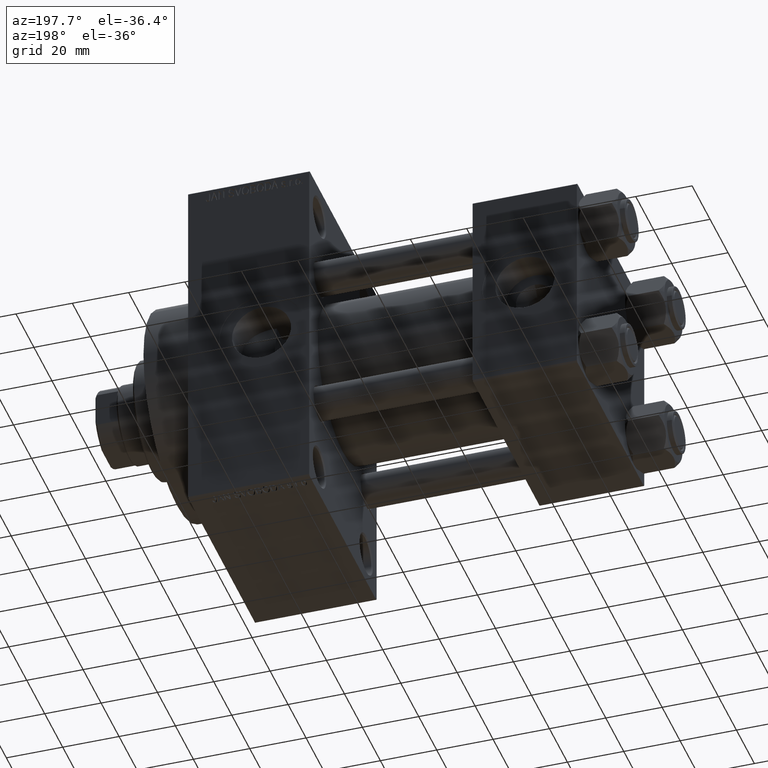
[diagram: clean part render]
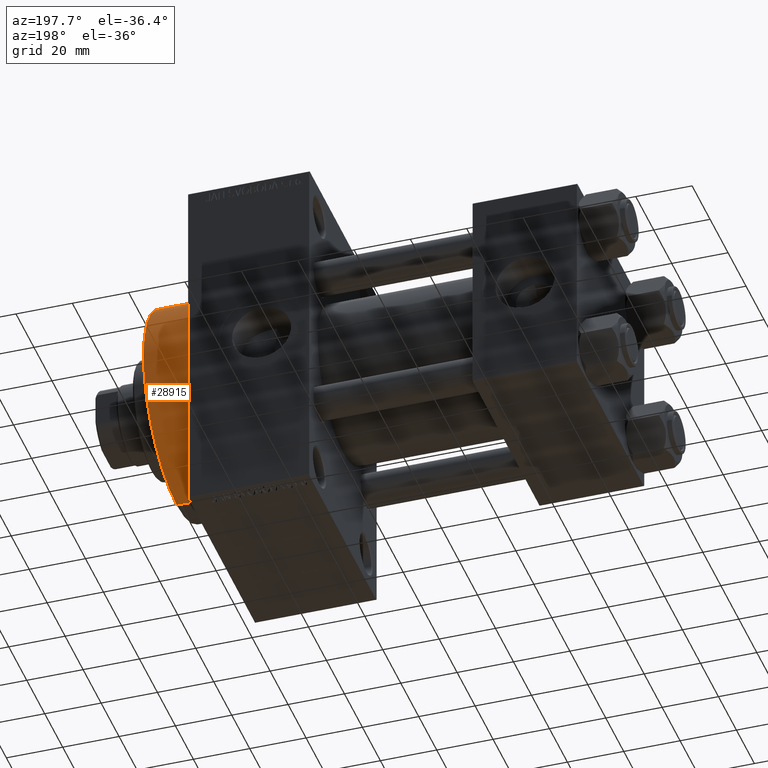
[diagram: same view with one face highlighted and labeled with its STEP entity id]
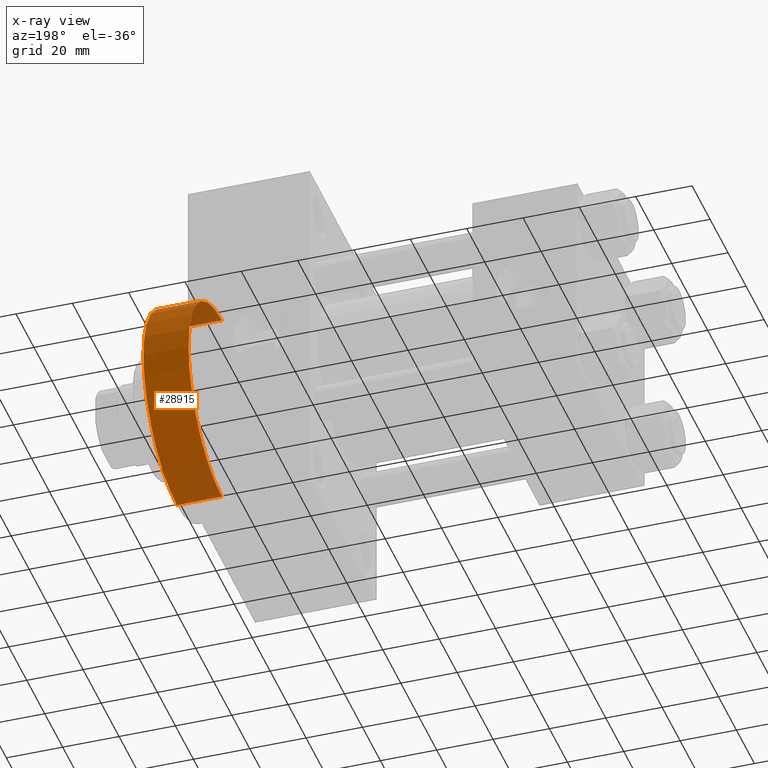
[diagram: x-ray of the same camera — body ghosted, the highlighted face saturated]
A machine part, auxiliary view. The second image highlights one B-rep face of the part: STEP entity #28915.
The next image is the same camera in x-ray: the body ghosted, the highlighted face saturated — about 16% of this face is hidden behind the body in this view.
In plain terms, the highlighted cylindrical surface (partial cylindrical patch) has radius 37 mm, axis along (-1, -0, -0).
Its self-contained STEP definition (entity closure, byte-faithful):
#1765 = CARTESIAN_POINT ( 'NONE',  ( 138.0000000000000000, 4.531193156845206793E-15, -37.00000000000000000 ) ) ;
#3172 = ORIENTED_EDGE ( 'NONE', *, *, #10743, .T. ) ;
#4338 = EDGE_LOOP ( 'NONE', ( #37027, #3172, #22402, #43935 ) ) ;
#4672 = CARTESIAN_POINT ( 'NONE',  ( 138.0000000000000000, 0.000000000000000000, 0.000000000000000000 ) ) ;
#5415 = DIRECTION ( 'NONE',  ( 0.000000000000000000, 0.000000000000000000, -1.000000000000000000 ) ) ;
#5635 = FACE_OUTER_BOUND ( 'NONE', #4338, .T. ) ;
#6168 = CIRCLE ( 'NONE', #42539, 37.00000000000000000 ) ;
#6369 = VECTOR ( 'NONE', #33379, 1000.000000000000000 ) ;
#9091 = CARTESIAN_POINT ( 'NONE',  ( 154.0000000000000284, 0.000000000000000000, 0.000000000000000000 ) ) ;
#10743 = EDGE_CURVE ( 'NONE', #14497, #20943, #28679, .T. ) ;
#14497 = VERTEX_POINT ( 'NONE', #34269 ) ;
#15607 = VERTEX_POINT ( 'NONE', #16382 ) ;
#16382 = CARTESIAN_POINT ( 'NONE',  ( 154.0000000000000284, 0.000000000000000000, 37.00000000000000000 ) ) ;
#16531 = DIRECTION ( 'NONE',  ( 0.000000000000000000, 0.000000000000000000, 1.000000000000000000 ) ) ;
#19413 = DIRECTION ( 'NONE',  ( -1.000000000000000000, -0.000000000000000000, -0.000000000000000000 ) ) ;
#20943 = VERTEX_POINT ( 'NONE', #1765 ) ;
#22402 = ORIENTED_EDGE ( 'NONE', *, *, #29980, .T. ) ;
#24680 = DIRECTION ( 'NONE',  ( -1.000000000000000000, -0.000000000000000000, -0.000000000000000000 ) ) ;
#25920 = AXIS2_PLACEMENT_3D ( 'NONE', #9091, #24680, #16531 ) ;
#27819 = CARTESIAN_POINT ( 'NONE',  ( 154.0000000000000284, 0.000000000000000000, 37.00000000000000000 ) ) ;
#28679 = LINE ( 'NONE', #44036, #6369 ) ;
#28915 = ADVANCED_FACE ( 'NONE', ( #5635 ), #42780, .T. ) ;
#29980 = EDGE_CURVE ( 'NONE', #20943, #33566, #6168, .T. ) ;
#30116 = AXIS2_PLACEMENT_3D ( 'NONE', #46777, #47002, #5415 ) ;
#30561 = CARTESIAN_POINT ( 'NONE',  ( 138.0000000000000000, 0.000000000000000000, 37.00000000000000000 ) ) ;
#33379 = DIRECTION ( 'NONE',  ( -1.000000000000000000, -0.000000000000000000, -0.000000000000000000 ) ) ;
#33566 = VERTEX_POINT ( 'NONE', #30561 ) ;
#34269 = CARTESIAN_POINT ( 'NONE',  ( 154.0000000000000284, 4.531193156845206793E-15, -37.00000000000000000 ) ) ;
#35611 = DIRECTION ( 'NONE',  ( 1.000000000000000000, 0.000000000000000000, 0.000000000000000000 ) ) ;
#36518 = EDGE_CURVE ( 'NONE', #14497, #15607, #43562, .T. ) ;
#37027 = ORIENTED_EDGE ( 'NONE', *, *, #36518, .F. ) ;
#42539 = AXIS2_PLACEMENT_3D ( 'NONE', #4672, #35611, #43032 ) ;
#42780 = CYLINDRICAL_SURFACE ( 'NONE', #25920, 37.00000000000000000 ) ;
#43032 = DIRECTION ( 'NONE',  ( 0.000000000000000000, 0.000000000000000000, -1.000000000000000000 ) ) ;
#43562 = CIRCLE ( 'NONE', #30116, 37.00000000000000000 ) ;
#43935 = ORIENTED_EDGE ( 'NONE', *, *, #46667, .F. ) ;
#44036 = CARTESIAN_POINT ( 'NONE',  ( 154.0000000000000284, 4.531193156845206793E-15, -37.00000000000000000 ) ) ;
#46667 = EDGE_CURVE ( 'NONE', #15607, #33566, #46896, .T. ) ;
#46777 = CARTESIAN_POINT ( 'NONE',  ( 154.0000000000000284, 0.000000000000000000, 0.000000000000000000 ) ) ;
#46896 = LINE ( 'NONE', #27819, #47270 ) ;
#47002 = DIRECTION ( 'NONE',  ( 1.000000000000000000, 0.000000000000000000, 0.000000000000000000 ) ) ;
#47270 = VECTOR ( 'NONE', #19413, 1000.000000000000000 ) ;